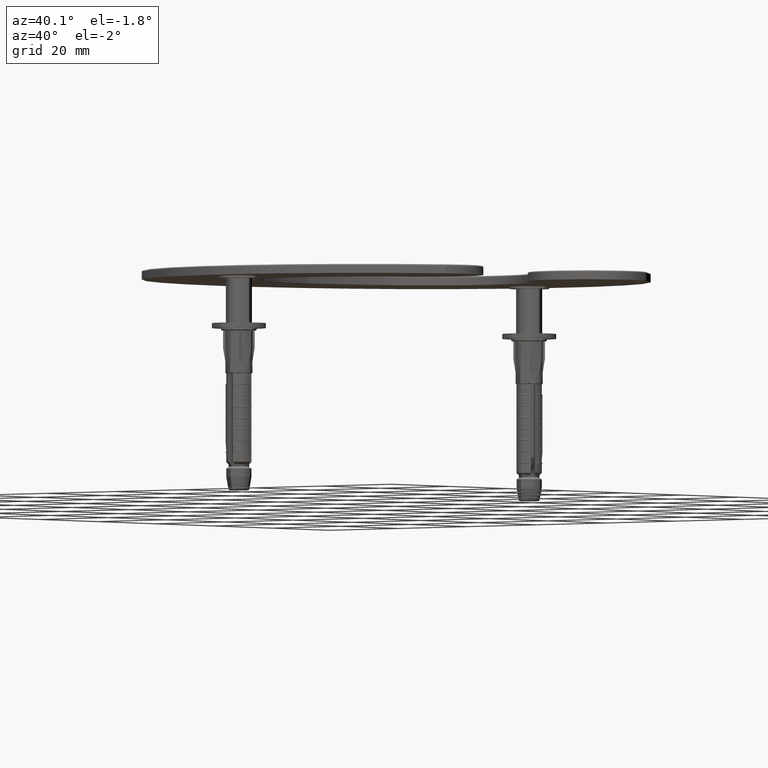
[diagram: clean part render]
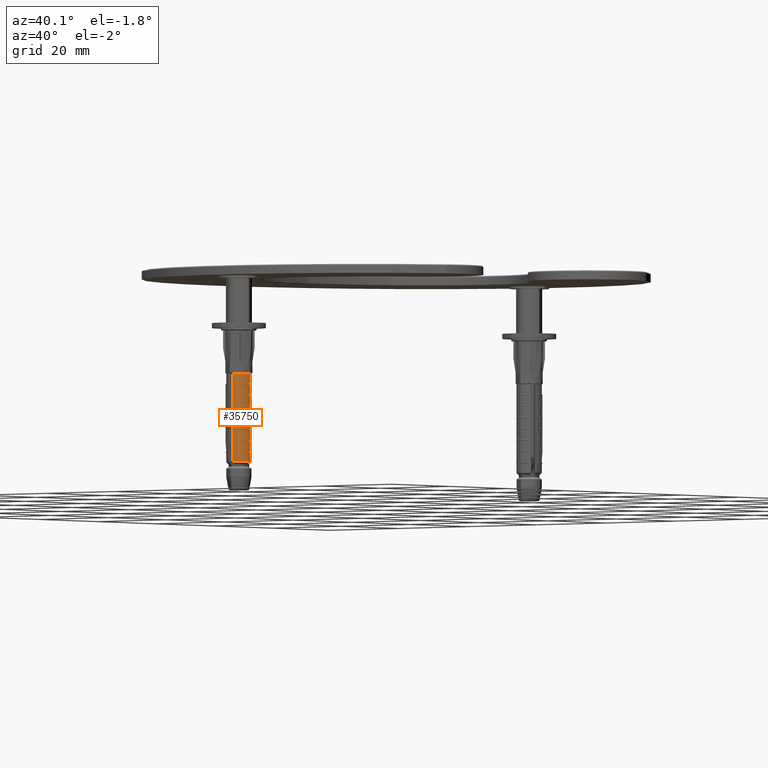
[diagram: same view with one face highlighted and labeled with its STEP entity id]
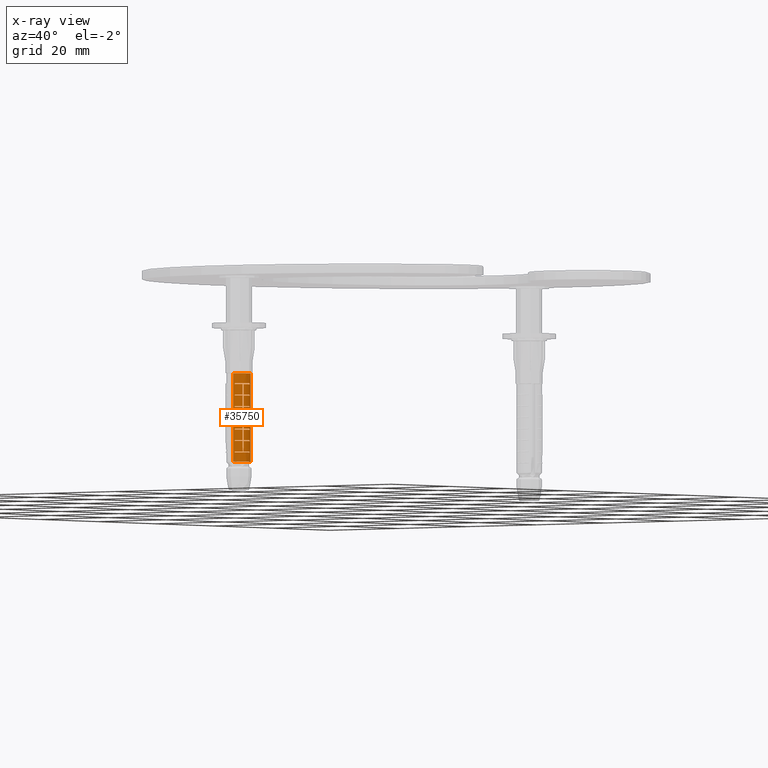
[diagram: x-ray of the same camera — body ghosted, the highlighted face saturated]
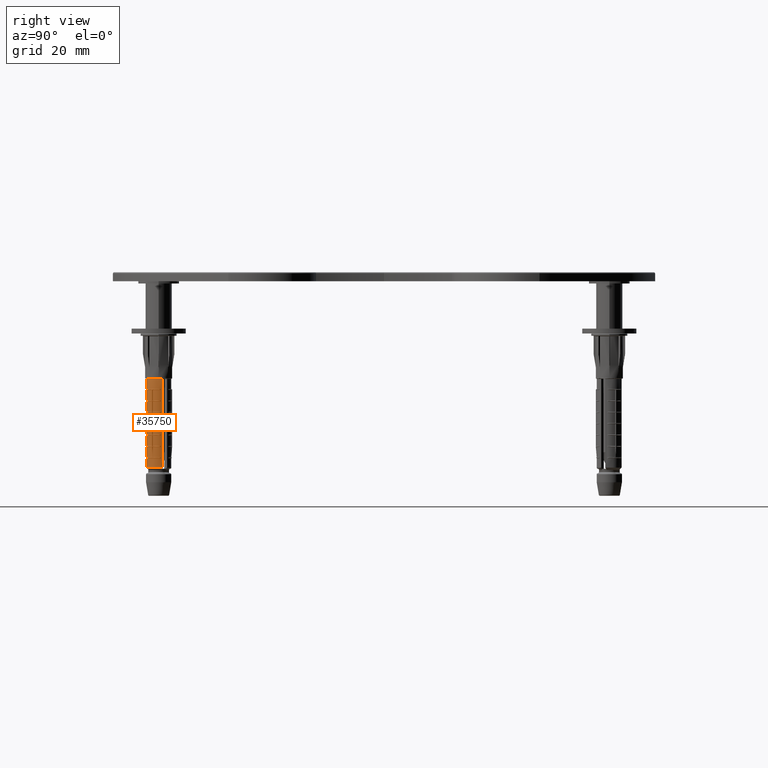
[diagram: same view with one face highlighted and labeled with its STEP entity id]
A machine part, auxiliary view. The second image highlights one B-rep face of the part: STEP entity #35750.
The next image is the same camera in x-ray: the body ghosted, the highlighted face saturated — about 0% of this face is hidden behind the body in this view.
A second angle (right view) of the same face is appended — the face is thin or edge-on in the first view.
In plain terms, the highlighted cylindrical surface (edge-blend (fillet) strip) has radius 2.8 mm, axis along (-0, -0, -1).
Its self-contained STEP definition (entity closure, byte-faithful):
#17 = CARTESIAN_POINT ( 'NONE',  ( 2.361358431559887894, -1.504654896546388843, -12.52500000000000213 ) ) ;
#262 = VERTEX_POINT ( 'NONE', #20679 ) ;
#355 = B_SPLINE_CURVE_WITH_KNOTS ( 'NONE', 3,
 ( #13775, #23487, #14671, #26785, #8777, #32685, #20603, #35460 ),
 .UNSPECIFIED., .F., .F.,
 ( 4, 2, 2, 4 ),
 ( 0.000000000000000000, 0.0005836036533015567622, 0.0008754054799523351433, 0.001167207306603113524 ),
 .UNSPECIFIED. ) ;
#460 = ORIENTED_EDGE ( 'NONE', *, *, #34290, .T. ) ;
#669 = CIRCLE ( 'NONE', #8049, 2.799999999999999822 ) ;
#687 = VECTOR ( 'NONE', #6719, 1000.000000000000000 ) ;
#718 = EDGE_CURVE ( 'NONE', #262, #24508, #28495, .T. ) ;
#812 = CARTESIAN_POINT ( 'NONE',  ( 1.016432192480531738, -2.608997048309794398, -36.00000000000000000 ) ) ;
#884 = EDGE_CURVE ( 'NONE', #38633, #18366, #11530, .T. ) ;
#909 = DIRECTION ( 'NONE',  ( -0.8660254037844363761, 0.5000000000000039968, 0.000000000000000000 ) ) ;
#1089 = VERTEX_POINT ( 'NONE', #29014 ) ;
#1159 = EDGE_CURVE ( 'NONE', #20196, #28974, #34602, .T. ) ;
#1197 = VERTEX_POINT ( 'NONE', #14399 ) ;
#1215 = ORIENTED_EDGE ( 'NONE', *, *, #12237, .F. ) ;
#1225 = CARTESIAN_POINT ( 'NONE',  ( 2.361358431559888338, -1.504654896546389509, -36.00000000000000000 ) ) ;
#1240 = CARTESIAN_POINT ( 'NONE',  ( 2.361358431559887894, -1.504654896546388843, -15.05000000000000071 ) ) ;
#1331 = EDGE_CURVE ( 'NONE', #1634, #30323, #8733, .T. ) ;
#1465 = VERTEX_POINT ( 'NONE', #37631 ) ;
#1511 = EDGE_CURVE ( 'NONE', #19840, #8223, #21880, .T. ) ;
#1634 = VERTEX_POINT ( 'NONE', #24197 ) ;
#1639 = CIRCLE ( 'NONE', #37343, 2.799999999999999822 ) ;
#1687 = CARTESIAN_POINT ( 'NONE',  ( 2.372170073811476598, -1.487569355360271572, -27.08807541499556137 ) ) ;
#1705 = DIRECTION ( 'NONE',  ( -0.8660254037844363761, 0.5000000000000039968, 0.000000000000000000 ) ) ;
#1720 = CARTESIAN_POINT ( 'NONE',  ( 2.483748580117751903, -1.292668940898269447, -36.00000000000000000 ) ) ;
#1938 = DIRECTION ( 'NONE',  ( -0.8660254037844363761, 0.5000000000000039968, 0.000000000000000000 ) ) ;
#2084 = CARTESIAN_POINT ( 'NONE',  ( 0.000000000000000000, -2.449293598294708880E-16, -36.00000000000000000 ) ) ;
#2109 = ORIENTED_EDGE ( 'NONE', *, *, #24686, .F. ) ;
#2152 = DIRECTION ( 'NONE',  ( -0.8660254037844363761, 0.5000000000000039968, 0.000000000000000000 ) ) ;
#2200 = VERTEX_POINT ( 'NONE', #15674 ) ;
#2282 = CARTESIAN_POINT ( 'NONE',  ( -6.833686692184955106E-17, -6.293977108247012473E-17, -15.05000000000000071 ) ) ;
#2304 = EDGE_CURVE ( 'NONE', #262, #26341, #33576, .T. ) ;
#2344 = DIRECTION ( 'NONE',  ( -0.000000000000000000, -6.803593328596413297E-18, -1.000000000000000000 ) ) ;
#2437 = CIRCLE ( 'NONE', #21266, 2.800000000000000266 ) ;
#2504 = CARTESIAN_POINT ( 'NONE',  ( 2.767673818475167469, 0.4242424242424209790, -36.00000000000000000 ) ) ;
#2518 = VERTEX_POINT ( 'NONE', #26042 ) ;
#2664 = CARTESIAN_POINT ( 'NONE',  ( 2.483748580117751015, -1.292668940898269225, -20.10000000000000142 ) ) ;
#2744 = CARTESIAN_POINT ( 'NONE',  ( 2.361358431559888338, -1.504654896546389509, -36.00000000000000000 ) ) ;
#2746 = ORIENTED_EDGE ( 'NONE', *, *, #7911, .T. ) ;
#2909 = ORIENTED_EDGE ( 'NONE', *, *, #14274, .T. ) ;
#2933 = CARTESIAN_POINT ( 'NONE',  ( -1.018242020413605627E-16, -9.378234993517556545E-17, -22.42499999999999716 ) ) ;
#2957 = VECTOR ( 'NONE', #11995, 1000.000000000000000 ) ;
#3015 = ORIENTED_EDGE ( 'NONE', *, *, #718, .T. ) ;
#3133 = CARTESIAN_POINT ( 'NONE',  ( 0.6222222222222220100, -2.729988920521994267, -10.09999999999999787 ) ) ;
#3240 = EDGE_CURVE ( 'NONE', #27476, #28974, #35928, .T. ) ;
#3256 = CIRCLE ( 'NONE', #16549, 2.800000000000000266 ) ;
#3261 = DIRECTION ( 'NONE',  ( 0.000000000000000000, 6.803593328596414068E-18, 1.000000000000000000 ) ) ;
#3294 = CARTESIAN_POINT ( 'NONE',  ( 2.361358431559888338, -1.504654896546389509, -36.00000000000000000 ) ) ;
#3419 = ORIENTED_EDGE ( 'NONE', *, *, #21073, .T. ) ;
#3455 = ORIENTED_EDGE ( 'NONE', *, *, #10797, .T. ) ;
#3461 = VERTEX_POINT ( 'NONE', #4416 ) ;
#3583 = EDGE_LOOP ( 'NONE', ( #5528, #14768, #28726, #36135 ) ) ;
#3609 = CARTESIAN_POINT ( 'NONE',  ( 2.767673818475167469, 0.4242424242424210901, -17.57499999999999929 ) ) ;
#3654 = VERTEX_POINT ( 'NONE', #11185 ) ;
#3706 = CIRCLE ( 'NONE', #23858, 2.799999999999999822 ) ;
#3761 = ORIENTED_EDGE ( 'NONE', *, *, #17088, .T. ) ;
#3777 = VERTEX_POINT ( 'NONE', #9062 ) ;
#3795 = CARTESIAN_POINT ( 'NONE',  ( 1.016432192480531294, -2.608997048309793954, -14.84999999999999964 ) ) ;
#4180 = ORIENTED_EDGE ( 'NONE', *, *, #25592, .F. ) ;
#4194 = CARTESIAN_POINT ( 'NONE',  ( -7.889389121376318181E-17, -7.266302475467895499E-17, -17.37499999999999645 ) ) ;
#4408 = DIRECTION ( 'NONE',  ( -0.8660254037844363761, 0.5000000000000039968, 0.000000000000000000 ) ) ;
#4416 = CARTESIAN_POINT ( 'NONE',  ( 2.767673818475166581, 0.4242424242424209790, -14.84999999999999964 ) ) ;
#4458 = DIRECTION ( 'NONE',  ( -0.8660254037844363761, 0.5000000000000039968, 0.000000000000000000 ) ) ;
#4562 = CARTESIAN_POINT ( 'NONE',  ( 2.361358431559888338, -1.504654896546389065, -19.89999999999999858 ) ) ;
#4623 = DIRECTION ( 'NONE',  ( -0.000000000000000000, -6.803593328596414068E-18, -1.000000000000000000 ) ) ;
#4633 = LINE ( 'NONE', #812, #38543 ) ;
#4661 = VERTEX_POINT ( 'NONE', #3133 ) ;
#4687 = LINE ( 'NONE', #5761, #18790 ) ;
#4717 = DIRECTION ( 'NONE',  ( -0.8660254037844363761, 0.5000000000000039968, 0.000000000000000000 ) ) ;
#4725 = CARTESIAN_POINT ( 'NONE',  ( 2.361358431559888338, -1.504654896546389287, -26.31052289814997636 ) ) ;
#4752 = CARTESIAN_POINT ( 'NONE',  ( -1.018242020413605627E-16, -9.378234993517556545E-17, -22.42499999999999716 ) ) ;
#4878 = EDGE_CURVE ( 'NONE', #36115, #35916, #14189, .T. ) ;
#4886 = DIRECTION ( 'NONE',  ( 0.000000000000000000, 6.803593328596414068E-18, 1.000000000000000000 ) ) ;
#4968 = VECTOR ( 'NONE', #36066, 1000.000000000000000 ) ;
#5253 = CARTESIAN_POINT ( 'NONE',  ( -6.833686692184955106E-17, -6.293977108247012473E-17, -15.05000000000000071 ) ) ;
#5366 = CARTESIAN_POINT ( 'NONE',  ( 1.016432192480531072, -2.608997048309794398, -22.42499999999999716 ) ) ;
#5403 = ORIENTED_EDGE ( 'NONE', *, *, #20137, .F. ) ;
#5425 = AXIS2_PLACEMENT_3D ( 'NONE', #21929, #25060, #34163 ) ;
#5528 = ORIENTED_EDGE ( 'NONE', *, *, #11351, .T. ) ;
#5626 = EDGE_CURVE ( 'NONE', #26993, #2200, #33452, .T. ) ;
#5761 = CARTESIAN_POINT ( 'NONE',  ( 2.767673818475167469, 0.4242424242424212011, -36.00000000000000000 ) ) ;
#5808 = B_SPLINE_CURVE_WITH_KNOTS ( 'NONE', 3,
 ( #29198, #10819, #25615, #1687, #23139, #38008, #34722, #4725 ),
 .UNSPECIFIED., .F., .F.,
 ( 4, 2, 2, 4 ),
 ( 0.000000000000000000, 0.0002919254474833839056, 0.0005838508949667678112, 0.001167701789933524997 ),
 .UNSPECIFIED. ) ;
#5822 = DIRECTION ( 'NONE',  ( 4.540655609425219795E-18, 4.182044590197350193E-18, 1.000000000000000000 ) ) ;
#5845 = DIRECTION ( 'NONE',  ( 4.540655609425219795E-18, 4.182044590197350193E-18, 1.000000000000000000 ) ) ;
#6052 = VERTEX_POINT ( 'NONE', #13620 ) ;
#6068 = CIRCLE ( 'NONE', #22604, 2.800000000000000266 ) ;
#6070 = LINE ( 'NONE', #8612, #31483 ) ;
#6177 = CIRCLE ( 'NONE', #8734, 2.800000000000000266 ) ;
#6350 = EDGE_CURVE ( 'NONE', #28813, #12930, #20659, .T. ) ;
#6452 = CARTESIAN_POINT ( 'NONE',  ( -1.027323331632455730E-16, -9.461875885321501577E-17, -22.62500000000000000 ) ) ;
#6474 = DIRECTION ( 'NONE',  ( 4.540655609425219795E-18, 4.182044590197350193E-18, 1.000000000000000000 ) ) ;
#6673 = AXIS2_PLACEMENT_3D ( 'NONE', #16251, #37685, #19662 ) ;
#6719 = DIRECTION ( 'NONE',  ( 0.000000000000000000, 6.803593328596414068E-18, 1.000000000000000000 ) ) ;
#6827 = ORIENTED_EDGE ( 'NONE', *, *, #21695, .T. ) ;
#6867 = DIRECTION ( 'NONE',  ( 0.000000000000000000, 6.803593328596414068E-18, 1.000000000000000000 ) ) ;
#6973 = DIRECTION ( 'NONE',  ( -0.8660254037844363761, 0.5000000000000039968, 0.000000000000000000 ) ) ;
#7142 = CARTESIAN_POINT ( 'NONE',  ( 2.767673818475167025, 0.4242424242424212011, -19.89999999999999858 ) ) ;
#7199 = ORIENTED_EDGE ( 'NONE', *, *, #27744, .F. ) ;
#7385 = ORIENTED_EDGE ( 'NONE', *, *, #11257, .T. ) ;
#7714 = VECTOR ( 'NONE', #11574, 1000.000000000000000 ) ;
#7720 = CIRCLE ( 'NONE', #14942, 2.799999999999999822 ) ;
#7896 = DIRECTION ( 'NONE',  ( 4.540655609425219795E-18, 4.182044590197350193E-18, 1.000000000000000000 ) ) ;
#7911 = EDGE_CURVE ( 'NONE', #3461, #22356, #21994, .T. ) ;
#8025 = VERTEX_POINT ( 'NONE', #17987 ) ;
#8049 = AXIS2_PLACEMENT_3D ( 'NONE', #15347, #21669, #18507 ) ;
#8128 = CARTESIAN_POINT ( 'NONE',  ( -7.889389121376318181E-17, -7.266302475467895499E-17, -17.37499999999999645 ) ) ;
#8133 = ORIENTED_EDGE ( 'NONE', *, *, #15765, .T. ) ;
#8223 = VERTEX_POINT ( 'NONE', #16774 ) ;
#8227 = LINE ( 'NONE', #21300, #30823 ) ;
#8401 = ORIENTED_EDGE ( 'NONE', *, *, #13591, .F. ) ;
#8479 = DIRECTION ( 'NONE',  ( 0.000000000000000000, 6.803593328596414068E-18, 1.000000000000000000 ) ) ;
#8585 = EDGE_CURVE ( 'NONE', #29954, #2518, #29974, .T. ) ;
#8612 = CARTESIAN_POINT ( 'NONE',  ( 1.016432192480531516, -2.608997048309794398, -36.00000000000000000 ) ) ;
#8616 = CARTESIAN_POINT ( 'NONE',  ( 2.483748580117751015, -1.292668940898269225, -25.14999999999999858 ) ) ;
#8733 = LINE ( 'NONE', #18328, #687 ) ;
#8734 = AXIS2_PLACEMENT_3D ( 'NONE', #33120, #27211, #21393 ) ;
#8777 = CARTESIAN_POINT ( 'NONE',  ( 2.474357888538994743, -1.310574868337772481, -27.08807541499458083 ) ) ;
#8923 = AXIS2_PLACEMENT_3D ( 'NONE', #30519, #33536, #36418 ) ;
#8961 = VERTEX_POINT ( 'NONE', #36427 ) ;
#9062 = CARTESIAN_POINT ( 'NONE',  ( 1.016432192480531738, -2.608997048309794842, -12.52500000000000213 ) ) ;
#9257 = CARTESIAN_POINT ( 'NONE',  ( 0.000000000000000000, -6.871629261882377608E-17, -10.09999999999999787 ) ) ;
#9391 = CARTESIAN_POINT ( 'NONE',  ( 2.675350868333214116, 0.8261342090173467989, -10.09999999999999787 ) ) ;
#9450 = CARTESIAN_POINT ( 'NONE',  ( 2.767673818475167025, 0.4242424242424212011, -20.10000000000000142 ) ) ;
#9462 = CIRCLE ( 'NONE', #26886, 2.800000000000000266 ) ;
#9483 = CARTESIAN_POINT ( 'NONE',  ( 2.361358431559887894, -1.504654896546388843, -14.84999999999999964 ) ) ;
#9495 = CARTESIAN_POINT ( 'NONE',  ( 2.483748580117751903, -1.292668940898269447, -36.00000000000000000 ) ) ;
#9522 = DIRECTION ( 'NONE',  ( 4.540655609425219795E-18, 4.182044590197350193E-18, 1.000000000000000000 ) ) ;
#9538 = DIRECTION ( 'NONE',  ( -0.8660254037844363761, 0.5000000000000039968, 0.000000000000000000 ) ) ;
#9641 = VECTOR ( 'NONE', #4623, 1000.000000000000000 ) ;
#9840 = EDGE_CURVE ( 'NONE', #8961, #1197, #1639, .T. ) ;
#9959 = EDGE_CURVE ( 'NONE', #3777, #36115, #8227, .T. ) ;
#10132 = CARTESIAN_POINT ( 'NONE',  ( 2.393379353113193275, -1.453181087164112872, -27.47499999999999076 ) ) ;
#10393 = DIRECTION ( 'NONE',  ( -0.000000000000000000, -6.803593328596414068E-18, -1.000000000000000000 ) ) ;
#10410 = CARTESIAN_POINT ( 'NONE',  ( 2.767673818475167469, 0.4242424242424211456, -15.05000000000000071 ) ) ;
#10488 = AXIS2_PLACEMENT_3D ( 'NONE', #2282, #23206, #29141 ) ;
#10730 = VERTEX_POINT ( 'NONE', #7142 ) ;
#10769 = CARTESIAN_POINT ( 'NONE',  ( 1.016432192480531294, -2.608997048309793954, -12.32500000000000107 ) ) ;
#10797 = EDGE_CURVE ( 'NONE', #29071, #6052, #25597, .T. ) ;
#10819 = CARTESIAN_POINT ( 'NONE',  ( 2.384165743644992563, -1.468355839205425672, -27.37920234786882290 ) ) ;
#10836 = CIRCLE ( 'NONE', #30440, 2.799999999999999822 ) ;
#10869 = CARTESIAN_POINT ( 'NONE',  ( 1.016432192480531738, -2.608997048309794842, -17.57499999999999929 ) ) ;
#10882 = EDGE_CURVE ( 'NONE', #8961, #36352, #32676, .T. ) ;
#10890 = EDGE_CURVE ( 'NONE', #26717, #26341, #17133, .T. ) ;
#11067 = VERTEX_POINT ( 'NONE', #14613 ) ;
#11078 = ORIENTED_EDGE ( 'NONE', *, *, #24291, .T. ) ;
#11098 = ORIENTED_EDGE ( 'NONE', *, *, #8585, .T. ) ;
#11185 = CARTESIAN_POINT ( 'NONE',  ( 2.767673818475166581, 0.4242424242424209235, -17.37499999999999645 ) ) ;
#11198 = DIRECTION ( 'NONE',  ( -0.000000000000000000, -6.803593328596414068E-18, -1.000000000000000000 ) ) ;
#11257 = EDGE_CURVE ( 'NONE', #12297, #27065, #17596, .T. ) ;
#11319 = EDGE_CURVE ( 'NONE', #11600, #1089, #29828, .T. ) ;
#11351 = EDGE_CURVE ( 'NONE', #33714, #36916, #23242, .T. ) ;
#11402 = ORIENTED_EDGE ( 'NONE', *, *, #16641, .T. ) ;
#11517 = CIRCLE ( 'NONE', #26425, 2.800000000000000266 ) ;
#11529 = EDGE_CURVE ( 'NONE', #27711, #1197, #26527, .T. ) ;
#11530 = LINE ( 'NONE', #1225, #23269 ) ;
#11574 = DIRECTION ( 'NONE',  ( 0.000000000000000000, 6.803593328596414068E-18, 1.000000000000000000 ) ) ;
#11600 = VERTEX_POINT ( 'NONE', #19964 ) ;
#11737 = VECTOR ( 'NONE', #10393, 1000.000000000000000 ) ;
#11786 = VECTOR ( 'NONE', #17234, 1000.000000000000000 ) ;
#11831 = ORIENTED_EDGE ( 'NONE', *, *, #9959, .T. ) ;
#11879 = DIRECTION ( 'NONE',  ( 4.540655609425219795E-18, 4.182044590197350193E-18, 1.000000000000000000 ) ) ;
#11995 = DIRECTION ( 'NONE',  ( 0.000000000000000000, 6.803593328596414068E-18, 1.000000000000000000 ) ) ;
#12111 = CARTESIAN_POINT ( 'NONE',  ( 2.455181414339694612, -1.346136777107339810, -27.47499999999999076 ) ) ;
#12218 = DIRECTION ( 'NONE',  ( -0.000000000000000000, -6.803593328596414068E-18, -1.000000000000000000 ) ) ;
#12234 = ORIENTED_EDGE ( 'NONE', *, *, #35884, .F. ) ;
#12237 = EDGE_CURVE ( 'NONE', #29071, #8025, #16112, .T. ) ;
#12289 = CARTESIAN_POINT ( 'NONE',  ( 2.767673818475167469, 0.4242424242424216452, -36.00000000000000000 ) ) ;
#12297 = VERTEX_POINT ( 'NONE', #19204 ) ;
#12467 = CARTESIAN_POINT ( 'NONE',  ( 0.6222222222222220100, -2.729988920521994267, -36.00000000000000000 ) ) ;
#12511 = VECTOR ( 'NONE', #15522, 1000.000000000000000 ) ;
#12543 = ORIENTED_EDGE ( 'NONE', *, *, #12596, .F. ) ;
#12596 = EDGE_CURVE ( 'NONE', #21309, #13923, #27912, .T. ) ;
#12812 = DIRECTION ( 'NONE',  ( -0.000000000000000000, -6.803593328596414068E-18, -1.000000000000000000 ) ) ;
#12852 = CIRCLE ( 'NONE', #30851, 2.800000000000000266 ) ;
#12863 = DIRECTION ( 'NONE',  ( -0.8660254037844363761, 0.5000000000000039968, 0.000000000000000000 ) ) ;
#12930 = VERTEX_POINT ( 'NONE', #31589 ) ;
#13236 = VERTEX_POINT ( 'NONE', #9483 ) ;
#13294 = CARTESIAN_POINT ( 'NONE',  ( -6.742873579996451604E-17, -6.210336216443063743E-17, -14.84999999999999964 ) ) ;
#13341 = ORIENTED_EDGE ( 'NONE', *, *, #26849, .T. ) ;
#13401 = CARTESIAN_POINT ( 'NONE',  ( -5.596358038616586259E-17, -5.154369957418233836E-17, -12.32500000000000107 ) ) ;
#13422 = ORIENTED_EDGE ( 'NONE', *, *, #9840, .F. ) ;
#13498 = AXIS2_PLACEMENT_3D ( 'NONE', #22191, #16403, #4408 ) ;
#13506 = CARTESIAN_POINT ( 'NONE',  ( -1.247545128689578942E-16, -1.149016751156721759E-16, -27.47499999999999076 ) ) ;
#13550 = ORIENTED_EDGE ( 'NONE', *, *, #27534, .T. ) ;
#13591 = EDGE_CURVE ( 'NONE', #12297, #37284, #6177, .T. ) ;
#13620 = CARTESIAN_POINT ( 'NONE',  ( 2.483748580117751015, -1.292668940898269225, -24.94999999999999574 ) ) ;
#13700 = DIRECTION ( 'NONE',  ( -0.000000000000000000, -6.803593328596414068E-18, -1.000000000000000000 ) ) ;
#13708 = EDGE_CURVE ( 'NONE', #30808, #13236, #36305, .T. ) ;
#13775 = CARTESIAN_POINT ( 'NONE',  ( 2.483748580117751903, -1.292668940898269669, -26.31052289814725853 ) ) ;
#13907 = CARTESIAN_POINT ( 'NONE',  ( 1.016432192480531294, -2.608997048309794842, -27.67499999999999361 ) ) ;
#13923 = VERTEX_POINT ( 'NONE', #9450 ) ;
#13933 = ORIENTED_EDGE ( 'NONE', *, *, #25644, .T. ) ;
#13944 = VERTEX_POINT ( 'NONE', #27724 ) ;
#14036 = ORIENTED_EDGE ( 'NONE', *, *, #1159, .F. ) ;
#14062 = ORIENTED_EDGE ( 'NONE', *, *, #10882, .T. ) ;
#14171 = CARTESIAN_POINT ( 'NONE',  ( 2.767673818475167469, 0.4242424242424213121, -24.94999999999999574 ) ) ;
#14189 = CIRCLE ( 'NONE', #14538, 2.799999999999999822 ) ;
#14274 = EDGE_CURVE ( 'NONE', #27065, #26717, #9462, .T. ) ;
#14389 = ORIENTED_EDGE ( 'NONE', *, *, #1511, .T. ) ;
#14399 = CARTESIAN_POINT ( 'NONE',  ( 2.767673818475167469, 0.4242424242424211456, -12.52500000000000213 ) ) ;
#14496 = LINE ( 'NONE', #12289, #18695 ) ;
#14538 = AXIS2_PLACEMENT_3D ( 'NONE', #13401, #34318, #4717 ) ;
#14580 = VECTOR ( 'NONE', #13700, 1000.000000000000000 ) ;
#14613 = CARTESIAN_POINT ( 'NONE',  ( 2.767673818475167025, 0.4242424242424212011, -25.14999999999999858 ) ) ;
#14671 = CARTESIAN_POINT ( 'NONE',  ( 2.482270526863570304, -1.295529128873119218, -26.69959461916634424 ) ) ;
#14768 = ORIENTED_EDGE ( 'NONE', *, *, #20246, .T. ) ;
#14798 = FACE_OUTER_BOUND ( 'NONE', #3583, .T. ) ;
#14942 = AXIS2_PLACEMENT_3D ( 'NONE', #8128, #19957, #1938 ) ;
#15283 = LINE ( 'NONE', #12467, #24657 ) ;
#15306 = CARTESIAN_POINT ( 'NONE',  ( 2.483748580117750571, -1.292668940898268781, -14.84999999999999964 ) ) ;
#15347 = CARTESIAN_POINT ( 'NONE',  ( -7.980202233564825381E-17, -7.349943367271844228E-17, -17.57499999999999929 ) ) ;
#15348 = CARTESIAN_POINT ( 'NONE',  ( 2.483748580117751015, -1.292668940898269003, -19.89999999999999858 ) ) ;
#15522 = DIRECTION ( 'NONE',  ( -0.000000000000000000, -6.803593328596414068E-18, -1.000000000000000000 ) ) ;
#15666 = DIRECTION ( 'NONE',  ( -0.000000000000000000, -6.803593328596414068E-18, -1.000000000000000000 ) ) ;
#15674 = CARTESIAN_POINT ( 'NONE',  ( 1.016432192480531072, -2.608997048309794398, -27.47499999999999076 ) ) ;
#15765 = EDGE_CURVE ( 'NONE', #13236, #35161, #36236, .T. ) ;
#15980 = VERTEX_POINT ( 'NONE', #15348 ) ;
#15994 = EDGE_CURVE ( 'NONE', #35916, #27711, #35306, .T. ) ;
#16036 = CIRCLE ( 'NONE', #5425, 2.800000000000000266 ) ;
#16090 = VERTEX_POINT ( 'NONE', #3609 ) ;
#16112 = CIRCLE ( 'NONE', #26820, 2.800000000000000266 ) ;
#16177 = DIRECTION ( 'NONE',  ( 4.540655609425219795E-18, 4.182044590197350193E-18, 1.000000000000000000 ) ) ;
#16251 = CARTESIAN_POINT ( 'NONE',  ( -6.742873579996451604E-17, -6.210336216443063743E-17, -14.84999999999999964 ) ) ;
#16266 = DIRECTION ( 'NONE',  ( 4.540655609425219795E-18, 4.182044590197350193E-18, 1.000000000000000000 ) ) ;
#16403 = DIRECTION ( 'NONE',  ( 4.540655609425219795E-18, 4.182044590197350193E-18, 1.000000000000000000 ) ) ;
#16423 = CIRCLE ( 'NONE', #26942, 2.799999999999999822 ) ;
#16549 = AXIS2_PLACEMENT_3D ( 'NONE', #32515, #20562, #35160 ) ;
#16597 = ORIENTED_EDGE ( 'NONE', *, *, #1331, .T. ) ;
#16634 = EDGE_CURVE ( 'NONE', #3654, #16090, #31527, .T. ) ;
#16641 = EDGE_CURVE ( 'NONE', #26304, #11067, #4687, .T. ) ;
#16659 = CARTESIAN_POINT ( 'NONE',  ( 2.483748580117751015, -1.292668940898269225, -22.62500000000000000 ) ) ;
#16660 = CARTESIAN_POINT ( 'NONE',  ( 2.361358431559888338, -1.504654896546389287, -25.14999999999999858 ) ) ;
#16684 = VECTOR ( 'NONE', #4886, 1000.000000000000000 ) ;
#16774 = CARTESIAN_POINT ( 'NONE',  ( 2.767673818475167469, 0.4242424242424218117, -22.42499999999999716 ) ) ;
#16865 = DIRECTION ( 'NONE',  ( -0.8660254037844363761, 0.5000000000000039968, 0.000000000000000000 ) ) ;
#16946 = EDGE_CURVE ( 'NONE', #19517, #4661, #10836, .T. ) ;
#17088 = EDGE_CURVE ( 'NONE', #20196, #30808, #21132, .T. ) ;
#17109 = EDGE_CURVE ( 'NONE', #21613, #22840, #5808, .T. ) ;
#17131 = AXIS2_PLACEMENT_3D ( 'NONE', #17933, #5822, #32782 ) ;
#17133 = LINE ( 'NONE', #28971, #16684 ) ;
#17141 = EDGE_CURVE ( 'NONE', #26993, #2518, #6068, .T. ) ;
#17234 = DIRECTION ( 'NONE',  ( -0.000000000000000000, -6.803593328596414068E-18, -1.000000000000000000 ) ) ;
#17287 = ORIENTED_EDGE ( 'NONE', *, *, #24294, .T. ) ;
#17516 = CARTESIAN_POINT ( 'NONE',  ( -5.687171150805088529E-17, -5.238010849222183182E-17, -12.52500000000000213 ) ) ;
#17578 = ORIENTED_EDGE ( 'NONE', *, *, #30796, .T. ) ;
#17587 = CARTESIAN_POINT ( 'NONE',  ( 0.6222222222222217880, -2.729988920521993379, -29.74999999999999645 ) ) ;
#17596 = LINE ( 'NONE', #32900, #21351 ) ;
#17858 = VECTOR ( 'NONE', #25222, 1000.000000000000000 ) ;
#17933 = CARTESIAN_POINT ( 'NONE',  ( -1.141974885770442881E-16, -1.051784214434633703E-16, -25.14999999999999858 ) ) ;
#17987 = CARTESIAN_POINT ( 'NONE',  ( 2.767673818475167025, 0.4242424242424217007, -22.62500000000000000 ) ) ;
#17988 = ORIENTED_EDGE ( 'NONE', *, *, #17109, .T. ) ;
#18035 = VERTEX_POINT ( 'NONE', #38349 ) ;
#18039 = CARTESIAN_POINT ( 'NONE',  ( -1.132893574551592038E-16, -1.043420125254238707E-16, -24.94999999999999574 ) ) ;
#18043 = DIRECTION ( 'NONE',  ( -0.000000000000000000, -6.803593328596413297E-18, -1.000000000000000000 ) ) ;
#18259 = ORIENTED_EDGE ( 'NONE', *, *, #29772, .T. ) ;
#18328 = CARTESIAN_POINT ( 'NONE',  ( 2.361358431559888338, -1.504654896546389509, -36.00000000000000000 ) ) ;
#18366 = VERTEX_POINT ( 'NONE', #18784 ) ;
#18464 = DIRECTION ( 'NONE',  ( -0.000000000000000000, -6.803593328596414068E-18, -1.000000000000000000 ) ) ;
#18507 = DIRECTION ( 'NONE',  ( -0.8660254037844363761, 0.5000000000000039968, 0.000000000000000000 ) ) ;
#18695 = VECTOR ( 'NONE', #15666, 1000.000000000000000 ) ;
#18698 = CARTESIAN_POINT ( 'NONE',  ( 2.767673818475167469, 0.4242424242424210346, -36.00000000000000000 ) ) ;
#18751 = CARTESIAN_POINT ( 'NONE',  ( -5.596358038616586259E-17, -5.154369957418233836E-17, -12.32500000000000107 ) ) ;
#18752 = CARTESIAN_POINT ( 'NONE',  ( -7.980202233564825381E-17, -7.349943367271844228E-17, -17.57499999999999929 ) ) ;
#18784 = CARTESIAN_POINT ( 'NONE',  ( 2.361358431559887894, -1.504654896546388843, -17.57499999999999929 ) ) ;
#18790 = VECTOR ( 'NONE', #19135, 1000.000000000000000 ) ;
#19009 = AXIS2_PLACEMENT_3D ( 'NONE', #4752, #34886, #16865 ) ;
#19052 = DIRECTION ( 'NONE',  ( 4.540655609425219795E-18, 4.182044590197350193E-18, 1.000000000000000000 ) ) ;
#19055 = CARTESIAN_POINT ( 'NONE',  ( -1.247545128689578942E-16, -1.149016751156721759E-16, -27.47499999999999076 ) ) ;
#19135 = DIRECTION ( 'NONE',  ( -0.000000000000000000, -6.803593328596414068E-18, -1.000000000000000000 ) ) ;
#19143 = CARTESIAN_POINT ( 'NONE',  ( 2.483748580117751903, -1.292668940898269447, -36.00000000000000000 ) ) ;
#19183 = CARTESIAN_POINT ( 'NONE',  ( 1.016432192480531516, -2.608997048309794398, -36.00000000000000000 ) ) ;
#19204 = CARTESIAN_POINT ( 'NONE',  ( 1.016432192480531294, -2.608997048309794842, -25.14999999999999858 ) ) ;
#19517 = VERTEX_POINT ( 'NONE', #9391 ) ;
#19600 = CARTESIAN_POINT ( 'NONE',  ( 2.767673818475166581, 0.4242424242424209790, -12.32500000000000107 ) ) ;
#19662 = DIRECTION ( 'NONE',  ( -0.8660254037844363761, 0.5000000000000039968, 0.000000000000000000 ) ) ;
#19772 = AXIS2_PLACEMENT_3D ( 'NONE', #18752, #34024, #12863 ) ;
#19840 = VERTEX_POINT ( 'NONE', #33773 ) ;
#19860 = CARTESIAN_POINT ( 'NONE',  ( 2.483748580117751903, -1.292668940898269447, -36.00000000000000000 ) ) ;
#19955 = VECTOR ( 'NONE', #12812, 1000.000000000000000 ) ;
#19957 = DIRECTION ( 'NONE',  ( 4.540655609425219795E-18, 4.182044590197350193E-18, 1.000000000000000000 ) ) ;
#19964 = CARTESIAN_POINT ( 'NONE',  ( 2.483748580117750571, -1.292668940898268781, -15.05000000000000071 ) ) ;
#20032 = LINE ( 'NONE', #21210, #4968 ) ;
#20137 = EDGE_CURVE ( 'NONE', #28813, #11067, #20532, .T. ) ;
#20142 = AXIS2_PLACEMENT_3D ( 'NONE', #2084, #2344, #23262 ) ;
#20196 = VERTEX_POINT ( 'NONE', #35555 ) ;
#20218 = ORIENTED_EDGE ( 'NONE', *, *, #30712, .T. ) ;
#20246 = EDGE_CURVE ( 'NONE', #36916, #19517, #20032, .T. ) ;
#20477 = CARTESIAN_POINT ( 'NONE',  ( 2.361358431559888338, -1.504654896546389287, -22.62500000000000000 ) ) ;
#20532 = CIRCLE ( 'NONE', #17131, 2.800000000000000266 ) ;
#20562 = DIRECTION ( 'NONE',  ( 4.540655609425219795E-18, 4.182044590197350193E-18, 1.000000000000000000 ) ) ;
#20603 = CARTESIAN_POINT ( 'NONE',  ( 2.463716330371346075, -1.330570181223416082, -27.37920234786985674 ) ) ;
#20659 = LINE ( 'NONE', #19143, #11737 ) ;
#20679 = CARTESIAN_POINT ( 'NONE',  ( 1.016432192480531294, -2.608997048309794842, -22.62500000000000000 ) ) ;
#20769 = ORIENTED_EDGE ( 'NONE', *, *, #4878, .T. ) ;
#20963 = DIRECTION ( 'NONE',  ( 0.000000000000000000, 6.803593328596414068E-18, 1.000000000000000000 ) ) ;
#21073 = EDGE_CURVE ( 'NONE', #10730, #13923, #25138, .T. ) ;
#21132 = LINE ( 'NONE', #19183, #17858 ) ;
#21210 = CARTESIAN_POINT ( 'NONE',  ( 2.675350868333214560, 0.8261342090173465769, -36.00000000000000000 ) ) ;
#21266 = AXIS2_PLACEMENT_3D ( 'NONE', #19055, #22234, #28157 ) ;
#21269 = DIRECTION ( 'NONE',  ( 4.540655609425219795E-18, 4.182044590197350193E-18, 1.000000000000000000 ) ) ;
#21300 = CARTESIAN_POINT ( 'NONE',  ( 1.016432192480531516, -2.608997048309794398, -36.00000000000000000 ) ) ;
#21309 = VERTEX_POINT ( 'NONE', #2664 ) ;
#21351 = VECTOR ( 'NONE', #32754, 1000.000000000000000 ) ;
#21393 = DIRECTION ( 'NONE',  ( -0.8660254037844363761, 0.5000000000000039968, 0.000000000000000000 ) ) ;
#21613 = VERTEX_POINT ( 'NONE', #10132 ) ;
#21669 = DIRECTION ( 'NONE',  ( 4.540655609425219795E-18, 4.182044590197350193E-18, 1.000000000000000000 ) ) ;
#21695 = EDGE_CURVE ( 'NONE', #1089, #3654, #7720, .T. ) ;
#21701 = ORIENTED_EDGE ( 'NONE', *, *, #16634, .T. ) ;
#21704 = DIRECTION ( 'NONE',  ( -0.000000000000000000, -6.803593328596414068E-18, -1.000000000000000000 ) ) ;
#21788 = AXIS2_PLACEMENT_3D ( 'NONE', #32276, #35568, #2152 ) ;
#21810 = EDGE_CURVE ( 'NONE', #4661, #33714, #15283, .T. ) ;
#21880 = CIRCLE ( 'NONE', #19009, 2.800000000000000266 ) ;
#21929 = CARTESIAN_POINT ( 'NONE',  ( -9.035904662756184758E-17, -8.322268734492726022E-17, -19.89999999999999858 ) ) ;
#21994 = LINE ( 'NONE', #18698, #29072 ) ;
#22014 = CARTESIAN_POINT ( 'NONE',  ( 2.361358431559888338, -1.504654896546389287, -24.94999999999999574 ) ) ;
#22191 = CARTESIAN_POINT ( 'NONE',  ( -9.126717774944693190E-17, -8.405909626296673519E-17, -20.10000000000000142 ) ) ;
#22234 = DIRECTION ( 'NONE',  ( 4.540655609425219795E-18, 4.182044590197350193E-18, 1.000000000000000000 ) ) ;
#22356 = VERTEX_POINT ( 'NONE', #10410 ) ;
#22487 = ORIENTED_EDGE ( 'NONE', *, *, #37257, .T. ) ;
#22604 = AXIS2_PLACEMENT_3D ( 'NONE', #23018, #31685, #37609 ) ;
#22827 = AXIS2_PLACEMENT_3D ( 'NONE', #18751, #21269, #30863 ) ;
#22840 = VERTEX_POINT ( 'NONE', #31750 ) ;
#22860 = DIRECTION ( 'NONE',  ( 0.000000000000000000, 6.803593328596414068E-18, 1.000000000000000000 ) ) ;
#23018 = CARTESIAN_POINT ( 'NONE',  ( -1.256626439908429046E-16, -1.157380840337116386E-16, -27.67499999999999361 ) ) ;
#23119 = VECTOR ( 'NONE', #3261, 1000.000000000000000 ) ;
#23139 = CARTESIAN_POINT ( 'NONE',  ( 2.369438809451845707, -1.491903281495484679, -26.99099585964534498 ) ) ;
#23164 = CIRCLE ( 'NONE', #34127, 2.799999999999999822 ) ;
#23206 = DIRECTION ( 'NONE',  ( 4.540655609425219795E-18, 4.182044590197350193E-18, 1.000000000000000000 ) ) ;
#23242 = CIRCLE ( 'NONE', #8923, 2.799999999999999822 ) ;
#23262 = DIRECTION ( 'NONE',  ( 0.000000000000000000, 1.000000000000000000, 0.000000000000000000 ) ) ;
#23263 = DIRECTION ( 'NONE',  ( 0.000000000000000000, 6.803593328596414068E-18, 1.000000000000000000 ) ) ;
#23269 = VECTOR ( 'NONE', #34011, 1000.000000000000000 ) ;
#23283 = VECTOR ( 'NONE', #34857, 1000.000000000000000 ) ;
#23487 = CARTESIAN_POINT ( 'NONE',  ( 2.483748580117775884, -1.292668940898222152, -26.50506116889412667 ) ) ;
#23615 = CIRCLE ( 'NONE', #19772, 2.799999999999999822 ) ;
#23742 = CYLINDRICAL_SURFACE ( 'NONE', #20142, 2.799999999999999822 ) ;
#23783 = DIRECTION ( 'NONE',  ( -0.8660254037844363761, 0.5000000000000039968, 0.000000000000000000 ) ) ;
#23858 = AXIS2_PLACEMENT_3D ( 'NONE', #5253, #7896, #1705 ) ;
#23885 = ORIENTED_EDGE ( 'NONE', *, *, #27428, .T. ) ;
#24197 = CARTESIAN_POINT ( 'NONE',  ( 2.361358431559888338, -1.504654896546389287, -22.42499999999999716 ) ) ;
#24249 = ORIENTED_EDGE ( 'NONE', *, *, #884, .T. ) ;
#24291 = EDGE_CURVE ( 'NONE', #30078, #27476, #23164, .T. ) ;
#24294 = EDGE_CURVE ( 'NONE', #2200, #21613, #2437, .T. ) ;
#24508 = VERTEX_POINT ( 'NONE', #5366 ) ;
#24627 = VECTOR ( 'NONE', #11198, 1000.000000000000000 ) ;
#24657 = VECTOR ( 'NONE', #12218, 1000.000000000000000 ) ;
#24686 = EDGE_CURVE ( 'NONE', #1465, #16090, #23615, .T. ) ;
#24692 = ORIENTED_EDGE ( 'NONE', *, *, #11529, .T. ) ;
#24869 = DIRECTION ( 'NONE',  ( -0.8660254037844363761, 0.5000000000000039968, 0.000000000000000000 ) ) ;
#24953 = ORIENTED_EDGE ( 'NONE', *, *, #11319, .T. ) ;
#25060 = DIRECTION ( 'NONE',  ( 4.540655609425219795E-18, 4.182044590197350193E-18, 1.000000000000000000 ) ) ;
#25138 = LINE ( 'NONE', #27256, #12511 ) ;
#25222 = DIRECTION ( 'NONE',  ( 0.000000000000000000, 6.803593328596414068E-18, 1.000000000000000000 ) ) ;
#25335 = LINE ( 'NONE', #3294, #30541 ) ;
#25592 = EDGE_CURVE ( 'NONE', #13944, #30323, #30163, .T. ) ;
#25597 = LINE ( 'NONE', #37124, #19955 ) ;
#25615 = CARTESIAN_POINT ( 'NONE',  ( 2.379905641839961117, -1.475161883330791346, -27.28203077829557444 ) ) ;
#25644 = EDGE_CURVE ( 'NONE', #18035, #38633, #16036, .T. ) ;
#25842 = EDGE_CURVE ( 'NONE', #12930, #28847, #355, .T. ) ;
#25908 = CARTESIAN_POINT ( 'NONE',  ( 2.675350868333213672, 0.8261342090173464658, -29.74999999999999645 ) ) ;
#26042 = CARTESIAN_POINT ( 'NONE',  ( 2.767673818475167025, 0.4242424242424215897, -27.67499999999999361 ) ) ;
#26304 = VERTEX_POINT ( 'NONE', #14171 ) ;
#26341 = VERTEX_POINT ( 'NONE', #20477 ) ;
#26423 = DIRECTION ( 'NONE',  ( 4.540655609425219795E-18, 4.182044590197350193E-18, 1.000000000000000000 ) ) ;
#26425 = AXIS2_PLACEMENT_3D ( 'NONE', #2933, #5845, #36346 ) ;
#26527 = LINE ( 'NONE', #28927, #24627 ) ;
#26578 = DIRECTION ( 'NONE',  ( -0.8660254037844363761, 0.5000000000000039968, 0.000000000000000000 ) ) ;
#26704 = ORIENTED_EDGE ( 'NONE', *, *, #36326, .T. ) ;
#26717 = VERTEX_POINT ( 'NONE', #22014 ) ;
#26747 = CARTESIAN_POINT ( 'NONE',  ( 2.361358431559887894, -1.504654896546388843, -17.37499999999999645 ) ) ;
#26785 = CARTESIAN_POINT ( 'NONE',  ( 2.476745546490396688, -1.306042560950279041, -26.99099585964414771 ) ) ;
#26820 = AXIS2_PLACEMENT_3D ( 'NONE', #6452, #9522, #24869 ) ;
#26849 = EDGE_CURVE ( 'NONE', #15980, #10730, #3256, .T. ) ;
#26886 = AXIS2_PLACEMENT_3D ( 'NONE', #36738, #6474, #9538 ) ;
#26942 = AXIS2_PLACEMENT_3D ( 'NONE', #29716, #26423, #23783 ) ;
#26993 = VERTEX_POINT ( 'NONE', #13907 ) ;
#27065 = VERTEX_POINT ( 'NONE', #38101 ) ;
#27211 = DIRECTION ( 'NONE',  ( 4.540655609425219795E-18, 4.182044590197350193E-18, 1.000000000000000000 ) ) ;
#27256 = CARTESIAN_POINT ( 'NONE',  ( 2.767673818475167469, 0.4242424242424211456, -36.00000000000000000 ) ) ;
#27428 = EDGE_CURVE ( 'NONE', #37600, #30078, #6070, .T. ) ;
#27442 = CARTESIAN_POINT ( 'NONE',  ( 2.361358431559888338, -1.504654896546389287, -20.10000000000000142 ) ) ;
#27476 = VERTEX_POINT ( 'NONE', #26747 ) ;
#27534 = EDGE_CURVE ( 'NONE', #22840, #37284, #25335, .T. ) ;
#27604 = CARTESIAN_POINT ( 'NONE',  ( 2.424871130596422120, -1.400000000000011235, -12.32500000000000107 ) ) ;
#27711 = VERTEX_POINT ( 'NONE', #19600 ) ;
#27721 = LINE ( 'NONE', #19860, #11786 ) ;
#27724 = CARTESIAN_POINT ( 'NONE',  ( 1.016432192480531738, -2.608997048309794398, -20.10000000000000142 ) ) ;
#27744 = EDGE_CURVE ( 'NONE', #11600, #22356, #3706, .T. ) ;
#27820 = EDGE_CURVE ( 'NONE', #1465, #15980, #27721, .T. ) ;
#27912 = CIRCLE ( 'NONE', #21788, 2.800000000000000266 ) ;
#28157 = DIRECTION ( 'NONE',  ( -0.8660254037844363761, 0.5000000000000039968, 0.000000000000000000 ) ) ;
#28190 = CARTESIAN_POINT ( 'NONE',  ( 2.767673818475167469, 0.4242424242424217007, -27.47499999999999076 ) ) ;
#28336 = AXIS2_PLACEMENT_3D ( 'NONE', #13506, #16266, #37312 ) ;
#28430 = VECTOR ( 'NONE', #21704, 1000.000000000000000 ) ;
#28442 = EDGE_CURVE ( 'NONE', #3777, #35161, #16423, .T. ) ;
#28495 = LINE ( 'NONE', #32183, #7714 ) ;
#28572 = ORIENTED_EDGE ( 'NONE', *, *, #10890, .T. ) ;
#28726 = ORIENTED_EDGE ( 'NONE', *, *, #16946, .T. ) ;
#28813 = VERTEX_POINT ( 'NONE', #8616 ) ;
#28830 = DIRECTION ( 'NONE',  ( 4.540655609425219795E-18, 4.182044590197350193E-18, 1.000000000000000000 ) ) ;
#28847 = VERTEX_POINT ( 'NONE', #12111 ) ;
#28927 = CARTESIAN_POINT ( 'NONE',  ( 2.767673818475167469, 0.4242424242424210346, -36.00000000000000000 ) ) ;
#28971 = CARTESIAN_POINT ( 'NONE',  ( 2.361358431559888338, -1.504654896546389509, -36.00000000000000000 ) ) ;
#28974 = VERTEX_POINT ( 'NONE', #1240 ) ;
#29014 = CARTESIAN_POINT ( 'NONE',  ( 2.483748580117750571, -1.292668940898268781, -17.37499999999999645 ) ) ;
#29071 = VERTEX_POINT ( 'NONE', #16659 ) ;
#29072 = VECTOR ( 'NONE', #36857, 1000.000000000000000 ) ;
#29141 = DIRECTION ( 'NONE',  ( -0.8660254037844363761, 0.5000000000000039968, 0.000000000000000000 ) ) ;
#29198 = CARTESIAN_POINT ( 'NONE',  ( 2.393379353113193275, -1.453181087164112872, -27.47499999999999076 ) ) ;
#29423 = ORIENTED_EDGE ( 'NONE', *, *, #27820, .T. ) ;
#29479 = ORIENTED_EDGE ( 'NONE', *, *, #6350, .T. ) ;
#29682 = VECTOR ( 'NONE', #23263, 1000.000000000000000 ) ;
#29716 = CARTESIAN_POINT ( 'NONE',  ( -5.687171150805088529E-17, -5.238010849222183182E-17, -12.52500000000000213 ) ) ;
#29772 = EDGE_CURVE ( 'NONE', #13944, #18035, #4633, .T. ) ;
#29791 = CARTESIAN_POINT ( 'NONE',  ( 2.767673818475167469, 0.4242424242424216452, -36.00000000000000000 ) ) ;
#29828 = LINE ( 'NONE', #9495, #28430 ) ;
#29882 = DIRECTION ( 'NONE',  ( 4.540655609425219795E-18, 4.182044590197350193E-18, 1.000000000000000000 ) ) ;
#29954 = VERTEX_POINT ( 'NONE', #28190 ) ;
#29974 = LINE ( 'NONE', #29791, #35136 ) ;
#30078 = VERTEX_POINT ( 'NONE', #31530 ) ;
#30136 = AXIS2_PLACEMENT_3D ( 'NONE', #13294, #19052, #6973 ) ;
#30163 = CIRCLE ( 'NONE', #13498, 2.800000000000000266 ) ;
#30279 = DIRECTION ( 'NONE',  ( 0.000000000000000000, 1.000000000000000000, 0.000000000000000000 ) ) ;
#30323 = VERTEX_POINT ( 'NONE', #27442 ) ;
#30440 = AXIS2_PLACEMENT_3D ( 'NONE', #9257, #18043, #30279 ) ;
#30519 = CARTESIAN_POINT ( 'NONE',  ( 0.000000000000000000, -2.024069015257432827E-16, -29.74999999999999645 ) ) ;
#30541 = VECTOR ( 'NONE', #20963, 1000.000000000000000 ) ;
#30712 = EDGE_CURVE ( 'NONE', #8223, #8025, #14496, .T. ) ;
#30758 = CARTESIAN_POINT ( 'NONE',  ( 1.016432192480531072, -2.608997048309794398, -36.00000000000000000 ) ) ;
#30796 = EDGE_CURVE ( 'NONE', #36352, #3461, #36600, .T. ) ;
#30808 = VERTEX_POINT ( 'NONE', #3795 ) ;
#30823 = VECTOR ( 'NONE', #22860, 1000.000000000000000 ) ;
#30851 = AXIS2_PLACEMENT_3D ( 'NONE', #18039, #29882, #35669 ) ;
#30863 = DIRECTION ( 'NONE',  ( -0.8660254037844363761, 0.5000000000000039968, 0.000000000000000000 ) ) ;
#31285 = LINE ( 'NONE', #31945, #23283 ) ;
#31398 = ORIENTED_EDGE ( 'NONE', *, *, #13708, .T. ) ;
#31483 = VECTOR ( 'NONE', #8479, 1000.000000000000000 ) ;
#31527 = LINE ( 'NONE', #2504, #14580 ) ;
#31530 = CARTESIAN_POINT ( 'NONE',  ( 1.016432192480531294, -2.608997048309793954, -17.37499999999999645 ) ) ;
#31589 = CARTESIAN_POINT ( 'NONE',  ( 2.483748580117751903, -1.292668940898269669, -26.31052289814725853 ) ) ;
#31644 = ORIENTED_EDGE ( 'NONE', *, *, #28442, .F. ) ;
#31685 = DIRECTION ( 'NONE',  ( 4.540655609425219795E-18, 4.182044590197350193E-18, 1.000000000000000000 ) ) ;
#31750 = CARTESIAN_POINT ( 'NONE',  ( 2.361358431559888338, -1.504654896546389287, -26.31052289814997636 ) ) ;
#31896 = ORIENTED_EDGE ( 'NONE', *, *, #3240, .T. ) ;
#31931 = ORIENTED_EDGE ( 'NONE', *, *, #37707, .T. ) ;
#31945 = CARTESIAN_POINT ( 'NONE',  ( 2.483748580117751903, -1.292668940898269447, -36.00000000000000000 ) ) ;
#32183 = CARTESIAN_POINT ( 'NONE',  ( 1.016432192480531072, -2.608997048309794398, -36.00000000000000000 ) ) ;
#32276 = CARTESIAN_POINT ( 'NONE',  ( -9.126717774944693190E-17, -8.405909626296673519E-17, -20.10000000000000142 ) ) ;
#32515 = CARTESIAN_POINT ( 'NONE',  ( -9.035904662756184758E-17, -8.322268734492726022E-17, -19.89999999999999858 ) ) ;
#32557 = ORIENTED_EDGE ( 'NONE', *, *, #5626, .T. ) ;
#32616 = CIRCLE ( 'NONE', #28336, 2.800000000000000266 ) ;
#32676 = LINE ( 'NONE', #1720, #9641 ) ;
#32685 = CARTESIAN_POINT ( 'NONE',  ( 2.467480486578951915, -1.323477802777900836, -27.28203077829503442 ) ) ;
#32754 = DIRECTION ( 'NONE',  ( 0.000000000000000000, 6.803593328596414068E-18, 1.000000000000000000 ) ) ;
#32782 = DIRECTION ( 'NONE',  ( -0.8660254037844363761, 0.5000000000000039968, 0.000000000000000000 ) ) ;
#32900 = CARTESIAN_POINT ( 'NONE',  ( 1.016432192480531072, -2.608997048309794398, -36.00000000000000000 ) ) ;
#33120 = CARTESIAN_POINT ( 'NONE',  ( -1.141974885770442881E-16, -1.051784214434633703E-16, -25.14999999999999858 ) ) ;
#33156 = AXIS2_PLACEMENT_3D ( 'NONE', #37620, #28830, #4458 ) ;
#33324 = ORIENTED_EDGE ( 'NONE', *, *, #2304, .F. ) ;
#33452 = LINE ( 'NONE', #30758, #23119 ) ;
#33536 = DIRECTION ( 'NONE',  ( 0.000000000000000000, 6.803593328596413297E-18, 1.000000000000000000 ) ) ;
#33576 = CIRCLE ( 'NONE', #33156, 2.800000000000000266 ) ;
#33714 = VERTEX_POINT ( 'NONE', #17587 ) ;
#33773 = CARTESIAN_POINT ( 'NONE',  ( 2.483748580117751015, -1.292668940898269225, -22.42499999999999716 ) ) ;
#34011 = DIRECTION ( 'NONE',  ( 0.000000000000000000, 6.803593328596414068E-18, 1.000000000000000000 ) ) ;
#34024 = DIRECTION ( 'NONE',  ( 4.540655609425219795E-18, 4.182044590197350193E-18, 1.000000000000000000 ) ) ;
#34127 = AXIS2_PLACEMENT_3D ( 'NONE', #4194, #16177, #909 ) ;
#34136 = ORIENTED_EDGE ( 'NONE', *, *, #17141, .F. ) ;
#34163 = DIRECTION ( 'NONE',  ( -0.8660254037844363761, 0.5000000000000039968, 0.000000000000000000 ) ) ;
#34178 = ORIENTED_EDGE ( 'NONE', *, *, #25842, .T. ) ;
#34290 = EDGE_CURVE ( 'NONE', #21309, #19840, #31285, .T. ) ;
#34318 = DIRECTION ( 'NONE',  ( 4.540655609425219795E-18, 4.182044590197350193E-18, 1.000000000000000000 ) ) ;
#34602 = CIRCLE ( 'NONE', #10488, 2.799999999999999822 ) ;
#34722 = CARTESIAN_POINT ( 'NONE',  ( 2.361358431559591242, -1.504654896546855580, -26.50506116889642172 ) ) ;
#34857 = DIRECTION ( 'NONE',  ( -0.000000000000000000, -6.803593328596414068E-18, -1.000000000000000000 ) ) ;
#34886 = DIRECTION ( 'NONE',  ( 4.540655609425219795E-18, 4.182044590197350193E-18, 1.000000000000000000 ) ) ;
#35136 = VECTOR ( 'NONE', #18464, 1000.000000000000000 ) ;
#35160 = DIRECTION ( 'NONE',  ( -0.8660254037844363761, 0.5000000000000039968, 0.000000000000000000 ) ) ;
#35161 = VERTEX_POINT ( 'NONE', #17 ) ;
#35306 = CIRCLE ( 'NONE', #22827, 2.799999999999999822 ) ;
#35317 = ORIENTED_EDGE ( 'NONE', *, *, #15994, .T. ) ;
#35460 = CARTESIAN_POINT ( 'NONE',  ( 2.455181414339694612, -1.346136777107339810, -27.47499999999999076 ) ) ;
#35555 = CARTESIAN_POINT ( 'NONE',  ( 1.016432192480531738, -2.608997048309794842, -15.05000000000000071 ) ) ;
#35568 = DIRECTION ( 'NONE',  ( 4.540655609425219795E-18, 4.182044590197350193E-18, 1.000000000000000000 ) ) ;
#35669 = DIRECTION ( 'NONE',  ( -0.8660254037844363761, 0.5000000000000039968, 0.000000000000000000 ) ) ;
#35750 = ADVANCED_FACE ( 'NONE', ( #14798, #38808 ), #23742, .T. ) ;
#35884 = EDGE_CURVE ( 'NONE', #37600, #18366, #669, .T. ) ;
#35916 = VERTEX_POINT ( 'NONE', #27604 ) ;
#35928 = LINE ( 'NONE', #2744, #2957 ) ;
#36066 = DIRECTION ( 'NONE',  ( 0.000000000000000000, 6.803593328596414068E-18, 1.000000000000000000 ) ) ;
#36115 = VERTEX_POINT ( 'NONE', #10769 ) ;
#36135 = ORIENTED_EDGE ( 'NONE', *, *, #21810, .T. ) ;
#36236 = LINE ( 'NONE', #38526, #29682 ) ;
#36305 = CIRCLE ( 'NONE', #6673, 2.799999999999999822 ) ;
#36326 = EDGE_CURVE ( 'NONE', #24508, #1634, #11517, .T. ) ;
#36346 = DIRECTION ( 'NONE',  ( -0.8660254037844363761, 0.5000000000000039968, 0.000000000000000000 ) ) ;
#36352 = VERTEX_POINT ( 'NONE', #15306 ) ;
#36418 = DIRECTION ( 'NONE',  ( 0.000000000000000000, 1.000000000000000000, 0.000000000000000000 ) ) ;
#36427 = CARTESIAN_POINT ( 'NONE',  ( 2.483748580117750571, -1.292668940898268781, -12.52500000000000213 ) ) ;
#36600 = CIRCLE ( 'NONE', #30136, 2.799999999999999822 ) ;
#36738 = CARTESIAN_POINT ( 'NONE',  ( -1.132893574551592038E-16, -1.043420125254238707E-16, -24.94999999999999574 ) ) ;
#36857 = DIRECTION ( 'NONE',  ( -0.000000000000000000, -6.803593328596414068E-18, -1.000000000000000000 ) ) ;
#36916 = VERTEX_POINT ( 'NONE', #25908 ) ;
#37124 = CARTESIAN_POINT ( 'NONE',  ( 2.483748580117751903, -1.292668940898269447, -36.00000000000000000 ) ) ;
#37257 = EDGE_CURVE ( 'NONE', #28847, #29954, #32616, .T. ) ;
#37284 = VERTEX_POINT ( 'NONE', #16660 ) ;
#37312 = DIRECTION ( 'NONE',  ( -0.8660254037844363761, 0.5000000000000039968, 0.000000000000000000 ) ) ;
#37343 = AXIS2_PLACEMENT_3D ( 'NONE', #17516, #11879, #26578 ) ;
#37388 = EDGE_LOOP ( 'NONE', ( #29479, #34178, #22487, #11098, #34136, #32557, #17287, #17988, #13550, #8401, #7385, #2909, #28572, #33324, #3015, #26704, #16597, #4180, #18259, #13933, #24249, #12234, #23885, #11078, #31896, #14036, #3761, #31398, #8133, #31644, #11831, #20769, #35317, #24692, #13422, #14062, #17578, #2746, #7199, #24953, #6827, #21701, #2109, #29423, #13341, #3419, #12543, #460, #14389, #20218, #1215, #3455, #31931, #11402, #5403 ) ) ;
#37600 = VERTEX_POINT ( 'NONE', #10869 ) ;
#37609 = DIRECTION ( 'NONE',  ( -0.8660254037844363761, 0.5000000000000039968, 0.000000000000000000 ) ) ;
#37620 = CARTESIAN_POINT ( 'NONE',  ( -1.027323331632455730E-16, -9.461875885321501577E-17, -22.62500000000000000 ) ) ;
#37631 = CARTESIAN_POINT ( 'NONE',  ( 2.483748580117750571, -1.292668940898268781, -17.57499999999999929 ) ) ;
#37685 = DIRECTION ( 'NONE',  ( 4.540655609425219795E-18, 4.182044590197350193E-18, 1.000000000000000000 ) ) ;
#37707 = EDGE_CURVE ( 'NONE', #6052, #26304, #12852, .T. ) ;
#38008 = CARTESIAN_POINT ( 'NONE',  ( 2.363096400378641437, -1.501944770892657210, -26.69959461916819521 ) ) ;
#38101 = CARTESIAN_POINT ( 'NONE',  ( 1.016432192480531072, -2.608997048309794398, -24.94999999999999574 ) ) ;
#38349 = CARTESIAN_POINT ( 'NONE',  ( 1.016432192480531516, -2.608997048309793954, -19.89999999999999858 ) ) ;
#38526 = CARTESIAN_POINT ( 'NONE',  ( 2.361358431559888338, -1.504654896546389509, -36.00000000000000000 ) ) ;
#38543 = VECTOR ( 'NONE', #6867, 1000.000000000000000 ) ;
#38633 = VERTEX_POINT ( 'NONE', #4562 ) ;
#38808 = FACE_BOUND ( 'NONE', #37388, .T. ) ;